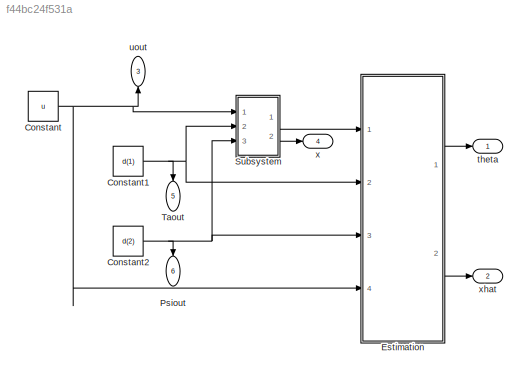
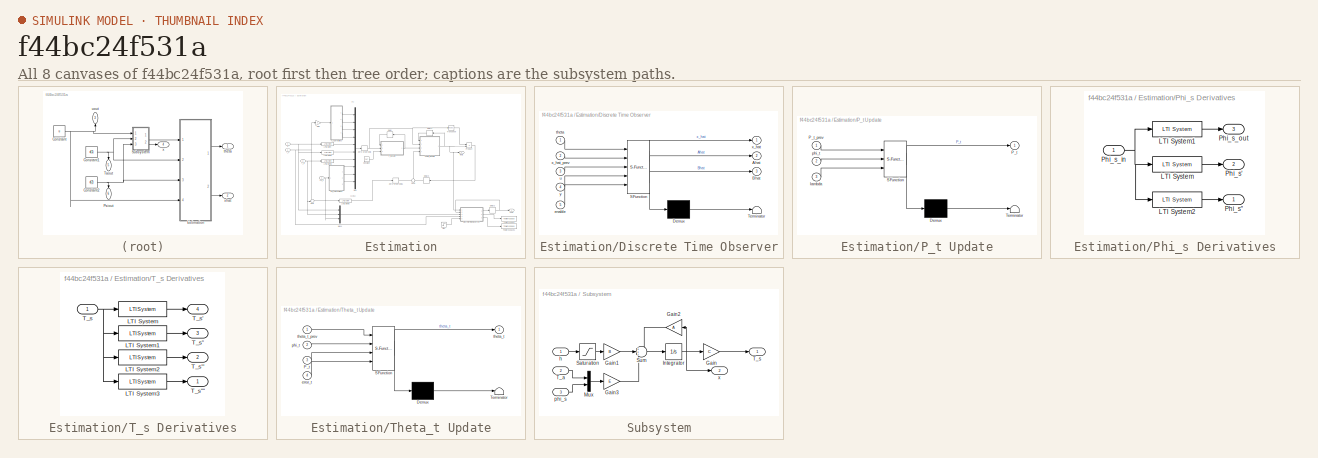
[diagram: thumbnail index - all 8 canvases of the model, root first then tree order]
MODEL slx_f44bc24f531a
KIND model
CONFIG AbsTol = auto
CONFIG EnableMultiTasking = off
CONFIG FixedStep = auto
CONFIG MaxStep = auto
CONFIG MinStep = auto
CONFIG RelTol = 1e-3
CONFIG SampleTimeConstraint = Unconstrained
CONFIG Solver = VariableStepAuto
CONFIG SolverName = VariableStepAuto
CONFIG StartTime = 0.0
CONFIG StopTime = i*dt
BLOCK [Constant] Constant
  Value = u
BLOCK [Constant] Constant1
  Value = d(1)
BLOCK [Constant] Constant2
  Value = d(2)
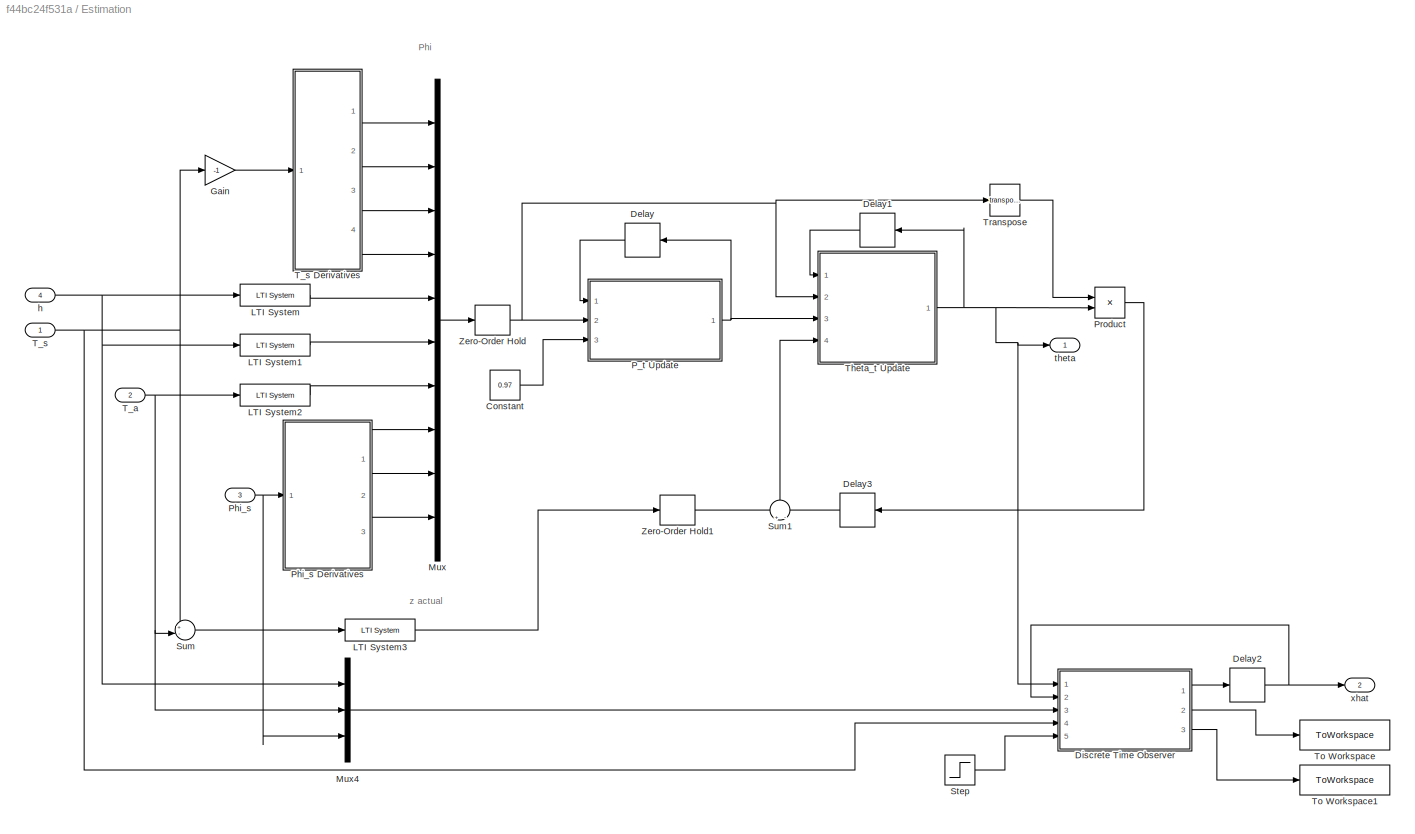
BLOCK [SubSystem] Estimation
  Ports = [4, 2]
  RequestExecContextInheritance = off
BLOCK [Constant] Estimation/Constant
  Value = 0.97
BLOCK [Delay] Estimation/Delay
  DelayLength = 1
  InitialCondition = 5*eye(10)
  InputPortMap = u0
  Ports = [1, 1]
BLOCK [Delay] Estimation/Delay1
  DelayLength = 1
  InitialCondition = 0
  InputPortMap = u0
  Ports = [1, 1]
BLOCK [Delay] Estimation/Delay2
  DelayLength = 1
  InitialCondition = [0;0;0;0];
  InputPortMap = u0
  Ports = [1, 1]
BLOCK [Delay] Estimation/Delay3
  DelayLength = 1
  InitialCondition = 0
  InputPortMap = u0
  Ports = [1, 1]
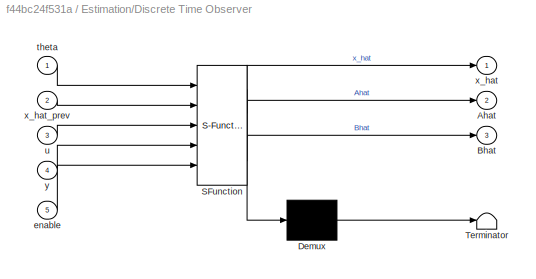
BLOCK [SubSystem] Estimation/Discrete Time Observer
  ErrorFcn = Stateflow.Translate.translate
  PermitHierarchicalResolution = ExplicitOnly
  Ports = [5, 3]
  RequestExecContextInheritance = off
  SFBlockType = MATLAB Function
  SystemSampleTime = t_observer
  TreatAsAtomicUnit = on
BLOCK [Demux] Estimation/Discrete Time Observer/ Demux 
  Outputs = 1
  Ports = [1, 1]
BLOCK [S-Function] Estimation/Discrete Time Observer/ SFunction 
  EnableBusSupport = on
  FunctionName = sf_sfun
  PortCounts = [5 4]
  Ports = [5, 4]
  SFcnIsStateOwnerBlock = off
  SFunctionDeploymentMode = off
  Tag = Stateflow S-Function 4
BLOCK [Terminator] Estimation/Discrete Time Observer/ Terminator 
BLOCK [Outport] Estimation/Discrete Time Observer/Ahat
  IconDisplay = Port number
  Port = 2
BLOCK [Outport] Estimation/Discrete Time Observer/Bhat
  IconDisplay = Port number
  Port = 3
BLOCK [Inport] Estimation/Discrete Time Observer/enable
  IconDisplay = Port number
  Port = 5
BLOCK [Inport] Estimation/Discrete Time Observer/theta
  IconDisplay = Port number
BLOCK [Inport] Estimation/Discrete Time Observer/u
  IconDisplay = Port number
  Port = 3
BLOCK [Outport] Estimation/Discrete Time Observer/x_hat
  IconDisplay = Port number
BLOCK [Inport] Estimation/Discrete Time Observer/x_hat_prev
  IconDisplay = Port number
  Port = 2
BLOCK [Inport] Estimation/Discrete Time Observer/y
  IconDisplay = Port number
  Port = 4
BLOCK [Gain] Estimation/Gain
  Gain = -1
  OutDataTypeStr = Inherit: Inherit via internal rule
  ParamDataTypeStr = Inherit: Inherit via internal rule
  SaturateOnIntegerOverflow = off
BLOCK [Reference] Estimation/LTI System  REF=cstblocks/LTI System
  Ports = [1, 1]
  SourceBlock = cstblocks/LTI System
  SourceProductBaseCode = CT
  SourceProductName = Control System Toolbox
  SourceType = LTI Block
BLOCK [Reference] Estimation/LTI System1  REF=cstblocks/LTI System
  Ports = [1, 1]
  SourceBlock = cstblocks/LTI System
  SourceProductBaseCode = CT
  SourceProductName = Control System Toolbox
  SourceType = LTI Block
BLOCK [Reference] Estimation/LTI System2  REF=cstblocks/LTI System
  Ports = [1, 1]
  SourceBlock = cstblocks/LTI System
  SourceProductBaseCode = CT
  SourceProductName = Control System Toolbox
  SourceType = LTI Block
BLOCK [Reference] Estimation/LTI System3  REF=cstblocks/LTI System
  Ports = [1, 1]
  SourceBlock = cstblocks/LTI System
  SourceProductBaseCode = CT
  SourceProductName = Control System Toolbox
  SourceType = LTI Block
BLOCK [Mux] Estimation/Mux
  DisplayOption = bar
  Inputs = 10
  Ports = [10, 1]
BLOCK [Mux] Estimation/Mux4
  DisplayOption = bar
  Inputs = 3
  Ports = [3, 1]
BLOCK [SubSystem] Estimation/P_t Update
  ErrorFcn = Stateflow.Translate.translate
  PermitHierarchicalResolution = ExplicitOnly
  Ports = [3, 1]
  RequestExecContextInheritance = off
  SFBlockType = MATLAB Function
  TreatAsAtomicUnit = on
BLOCK [Demux] Estimation/P_t Update/ Demux 
  Outputs = 1
  Ports = [1, 1]
BLOCK [S-Function] Estimation/P_t Update/ SFunction 
  EnableBusSupport = on
  FunctionName = sf_sfun
  PortCounts = [3 2]
  Ports = [3, 2]
  SFcnIsStateOwnerBlock = off
  SFunctionDeploymentMode = off
  Tag = Stateflow S-Function 1
BLOCK [Terminator] Estimation/P_t Update/ Terminator 
BLOCK [Outport] Estimation/P_t Update/P_t
  IconDisplay = Port number
BLOCK [Inport] Estimation/P_t Update/P_t_prev
  IconDisplay = Port number
BLOCK [Inport] Estimation/P_t Update/lambda
  IconDisplay = Port number
  Port = 3
BLOCK [Inport] Estimation/P_t Update/phi_t
  IconDisplay = Port number
  Port = 2
BLOCK [Inport] Estimation/Phi_s
  IconDisplay = Port number
  Port = 3
BLOCK [SubSystem] Estimation/Phi_s Derivatives
  Ports = [1, 3]
  RequestExecContextInheritance = off
BLOCK [Reference] Estimation/Phi_s Derivatives/LTI System  REF=cstblocks/LTI System
  Ports = [1, 1]
  SourceBlock = cstblocks/LTI System
  SourceProductBaseCode = CT
  SourceProductName = Control System Toolbox
  SourceType = LTI Block
BLOCK [Reference] Estimation/Phi_s Derivatives/LTI System1  REF=cstblocks/LTI System
  Ports = [1, 1]
  SourceBlock = cstblocks/LTI System
  SourceProductBaseCode = CT
  SourceProductName = Control System Toolbox
  SourceType = LTI Block
BLOCK [Reference] Estimation/Phi_s Derivatives/LTI System2  REF=cstblocks/LTI System
  Ports = [1, 1]
  SourceBlock = cstblocks/LTI System
  SourceProductBaseCode = CT
  SourceProductName = Control System Toolbox
  SourceType = LTI Block
BLOCK [Outport] Estimation/Phi_s Derivatives/Phi_s'
  IconDisplay = Port number
  Port = 2
BLOCK [Outport] Estimation/Phi_s Derivatives/Phi_s''
  IconDisplay = Port number
BLOCK [Inport] Estimation/Phi_s Derivatives/Phi_s_in
  IconDisplay = Port number
BLOCK [Outport] Estimation/Phi_s Derivatives/Phi_s_out
  IconDisplay = Port number
  Port = 3
BLOCK [Product] Estimation/Product
  InputSameDT = off
  Multiplication = Matrix(*)
  OutDataTypeStr = Inherit: Inherit via internal rule
  Ports = [2, 1]
  RndMeth = Floor
  SaturateOnIntegerOverflow = off
BLOCK [Step] Estimation/Step
  Time = n_paramConverge
BLOCK [Sum] Estimation/Sum
  IconShape = round
  InputSameDT = off
  Inputs = +-|
  OutDataTypeStr = Inherit: Inherit via internal rule
  Ports = [2, 1]
  SaturateOnIntegerOverflow = off
BLOCK [Sum] Estimation/Sum1
  IconShape = round
  InputSameDT = off
  Inputs = +|-
  OutDataTypeStr = Inherit: Inherit via internal rule
  Ports = [2, 1]
  SaturateOnIntegerOverflow = off
BLOCK [Inport] Estimation/T_a
  IconDisplay = Port number
  Port = 2
BLOCK [Inport] Estimation/T_s
  IconDisplay = Port number
BLOCK [SubSystem] Estimation/T_s Derivatives
  Ports = [1, 4]
  RequestExecContextInheritance = off
BLOCK [Reference] Estimation/T_s Derivatives/LTI System  REF=cstblocks/LTI System
  Ports = [1, 1]
  SourceBlock = cstblocks/LTI System
  SourceProductBaseCode = CT
  SourceProductName = Control System Toolbox
  SourceType = LTI Block
BLOCK [Reference] Estimation/T_s Derivatives/LTI System1  REF=cstblocks/LTI System
  Ports = [1, 1]
  SourceBlock = cstblocks/LTI System
  SourceProductBaseCode = CT
  SourceProductName = Control System Toolbox
  SourceType = LTI Block
BLOCK [Reference] Estimation/T_s Derivatives/LTI System2  REF=cstblocks/LTI System
  Ports = [1, 1]
  SourceBlock = cstblocks/LTI System
  SourceProductBaseCode = CT
  SourceProductName = Control System Toolbox
  SourceType = LTI Block
BLOCK [Reference] Estimation/T_s Derivatives/LTI System3  REF=cstblocks/LTI System
  Ports = [1, 1]
  SourceBlock = cstblocks/LTI System
  SourceProductBaseCode = CT
  SourceProductName = Control System Toolbox
  SourceType = LTI Block
BLOCK [Inport] Estimation/T_s Derivatives/T_s
  IconDisplay = Port number
BLOCK [Outport] Estimation/T_s Derivatives/T_s'
  IconDisplay = Port number
  Port = 4
BLOCK [Outport] Estimation/T_s Derivatives/T_s''
  IconDisplay = Port number
  Port = 3
BLOCK [Outport] Estimation/T_s Derivatives/T_s'''
  IconDisplay = Port number
  Port = 2
BLOCK [Outport] Estimation/T_s Derivatives/T_s''''
  IconDisplay = Port number
BLOCK [SubSystem] Estimation/Theta_t Update
  ErrorFcn = Stateflow.Translate.translate
  PermitHierarchicalResolution = ExplicitOnly
  Ports = [4, 1]
  RequestExecContextInheritance = off
  SFBlockType = MATLAB Function
  TreatAsAtomicUnit = on
BLOCK [Demux] Estimation/Theta_t Update/ Demux 
  Outputs = 1
  Ports = [1, 1]
BLOCK [S-Function] Estimation/Theta_t Update/ SFunction 
  EnableBusSupport = on
  FunctionName = sf_sfun
  PortCounts = [4 2]
  Ports = [4, 2]
  SFcnIsStateOwnerBlock = off
  SFunctionDeploymentMode = off
  Tag = Stateflow S-Function 3
BLOCK [Terminator] Estimation/Theta_t Update/ Terminator 
BLOCK [Inport] Estimation/Theta_t Update/P_t
  IconDisplay = Port number
  Port = 3
BLOCK [Inport] Estimation/Theta_t Update/error_t
  IconDisplay = Port number
  Port = 4
BLOCK [Inport] Estimation/Theta_t Update/phi_t
  IconDisplay = Port number
  Port = 2
BLOCK [Outport] Estimation/Theta_t Update/theta_t
  IconDisplay = Port number
BLOCK [Inport] Estimation/Theta_t Update/theta_t_prev
  IconDisplay = Port number
BLOCK [ToWorkspace] Estimation/To Workspace
  FixptAsFi = on
  MaxDataPoints = 1
  Ports = [1]
  SampleTime = -1
  SaveFormat = Structure
  VariableName = EstimatedPlant_A
BLOCK [ToWorkspace] Estimation/To Workspace1
  FixptAsFi = on
  MaxDataPoints = 1
  Ports = [1]
  SampleTime = -1
  SaveFormat = Structure
  VariableName = EstimatedPlant_B
BLOCK [Math] Estimation/Transpose
  Operator = transpose
  Ports = [1, 1]
  SignedPower = off
BLOCK [ZeroOrderHold] Estimation/Zero-Order Hold
  SampleTime = t_sample_est
BLOCK [ZeroOrderHold] Estimation/Zero-Order Hold1
  SampleTime = t_sample_est
BLOCK [Inport] Estimation/h
  IconDisplay = Port number
  Port = 4
BLOCK [Outport] Estimation/theta
  IconDisplay = Port number
BLOCK [Outport] Estimation/xhat
  IconDisplay = Port number
  Port = 2
BLOCK [Outport] Psiout
  IconDisplay = Port number
  Port = 6
BLOCK [SubSystem] Subsystem
  Ports = [3, 2]
  RequestExecContextInheritance = off
BLOCK [Gain] Subsystem/Gain
  Gain = C
  InitFcn = parameters
  Multiplication = Matrix(K*u)
  OutDataTypeStr = Inherit: Inherit via internal rule
  ParamDataTypeStr = Inherit: Inherit via internal rule
  SaturateOnIntegerOverflow = off
BLOCK [Gain] Subsystem/Gain1
  Gain = B
  Multiplication = Matrix(K*u)
  OutDataTypeStr = Inherit: Inherit via internal rule
  ParamDataTypeStr = Inherit: Inherit via internal rule
  SaturateOnIntegerOverflow = off
BLOCK [Gain] Subsystem/Gain2
  Gain = A
  Multiplication = Matrix(K*u)
  OutDataTypeStr = Inherit: Inherit via internal rule
  ParamDataTypeStr = Inherit: Inherit via internal rule
  SaturateOnIntegerOverflow = off
BLOCK [Gain] Subsystem/Gain3
  Gain = E
  Multiplication = Matrix(K*u)
  OutDataTypeStr = Inherit: Inherit via internal rule
  ParamDataTypeStr = Inherit: Inherit via internal rule
  SaturateOnIntegerOverflow = off
BLOCK [Integrator] Subsystem/Integrator
  InitialCondition = x0
  Ports = [1, 1]
BLOCK [Mux] Subsystem/Mux
  DisplayOption = bar
  Inputs = 2
  Ports = [2, 1]
BLOCK [Saturate] Subsystem/Saturation
  InputPortMap = u0
  LowerLimit = 0
  Ports = [1, 1]
  UpperLimit = 1
BLOCK [Sum] Subsystem/Sum
  IconShape = round
  InputSameDT = off
  Inputs = +++
  OutDataTypeStr = Inherit: Inherit via internal rule
  Ports = [3, 1]
  SaturateOnIntegerOverflow = off
BLOCK [Inport] Subsystem/T_a
  IconDisplay = Port number
  Port = 2
BLOCK [Outport] Subsystem/T_s
  IconDisplay = Port number
BLOCK [Inport] Subsystem/h
  IconDisplay = Port number
BLOCK [Inport] Subsystem/phi_s
  IconDisplay = Port number
  Port = 3
BLOCK [Outport] Subsystem/x
  IconDisplay = Port number
  Port = 2
BLOCK [Outport] Taout
  IconDisplay = Port number
  Port = 5
BLOCK [Outport] theta
  IconDisplay = Port number
BLOCK [Outport] uout
  IconDisplay = Port number
  Port = 3
BLOCK [Outport] x
  IconDisplay = Port number
  Port = 4
BLOCK [Outport] xhat
  IconDisplay = Port number
  Port = 2
ANNOTATION Estimation: Phi
ANNOTATION Estimation: z actual
NET Constant1:1 -> Estimation:2, Subsystem:2, Taout:1
NET Constant2:1 -> Estimation:3, Psiout:1, Subsystem:3
NET Constant:1 -> Estimation:4, Subsystem:1, uout:1
LINE Estimation/Constant:1 -> Estimation/P_t Update:3
LINE Estimation/Delay1:1 -> Estimation/Theta_t Update:1
NET Estimation/Delay2:1 -> Estimation/Discrete Time Observer:2, Estimation/xhat:1
LINE Estimation/Delay3:1 -> Estimation/Sum1:2
LINE Estimation/Delay:1 -> Estimation/P_t Update:1
LINE Estimation/Discrete Time Observer:1 -> Estimation/Delay2:1
LINE Estimation/Discrete Time Observer:2 -> Estimation/To Workspace:1
LINE Estimation/Discrete Time Observer:3 -> Estimation/To Workspace1:1
LINE Estimation/Gain:1 -> Estimation/T_s Derivatives:1
LINE Estimation/LTI System1:1 -> Estimation/Mux:6
LINE Estimation/LTI System2:1 -> Estimation/Mux:7
LINE Estimation/LTI System3:1 -> Estimation/Zero-Order Hold1:1
LINE Estimation/LTI System:1 -> Estimation/Mux:5
LINE Estimation/Mux4:1 -> Estimation/Discrete Time Observer:3
LINE Estimation/Mux:1 -> Estimation/Zero-Order Hold:1
NET Estimation/P_t Update:1 -> Estimation/Delay:1, Estimation/Theta_t Update:3
LINE Estimation/Phi_s Derivatives/LTI System1:1 -> Estimation/Phi_s Derivatives/Phi_s_out:1
LINE Estimation/Phi_s Derivatives/LTI System2:1 -> Estimation/Phi_s Derivatives/Phi_s'':1
LINE Estimation/Phi_s Derivatives/LTI System:1 -> Estimation/Phi_s Derivatives/Phi_s':1
NET Estimation/Phi_s Derivatives/Phi_s_in:1 -> Estimation/Phi_s Derivatives/LTI System1:1, Estimation/Phi_s Derivatives/LTI System2:1, Estimation/Phi_s Derivatives/LTI System:1
LINE Estimation/Phi_s Derivatives:1 -> Estimation/Mux:8
LINE Estimation/Phi_s Derivatives:2 -> Estimation/Mux:9
LINE Estimation/Phi_s Derivatives:3 -> Estimation/Mux:10
NET Estimation/Phi_s:1 -> Estimation/Mux4:3, Estimation/Phi_s Derivatives:1
LINE Estimation/Product:1 -> Estimation/Delay3:1
LINE Estimation/Step:1 -> Estimation/Discrete Time Observer:5
LINE Estimation/Sum1:1 -> Estimation/Theta_t Update:4
LINE Estimation/Sum:1 -> Estimation/LTI System3:1
NET Estimation/T_a:1 -> Estimation/LTI System2:1, Estimation/Mux4:2, Estimation/Sum:2
LINE Estimation/T_s Derivatives/LTI System1:1 -> Estimation/T_s Derivatives/T_s'':1
LINE Estimation/T_s Derivatives/LTI System2:1 -> Estimation/T_s Derivatives/T_s''':1
LINE Estimation/T_s Derivatives/LTI System3:1 -> Estimation/T_s Derivatives/T_s'''':1
LINE Estimation/T_s Derivatives/LTI System:1 -> Estimation/T_s Derivatives/T_s':1
NET Estimation/T_s Derivatives/T_s:1 -> Estimation/T_s Derivatives/LTI System1:1, Estimation/T_s Derivatives/LTI System2:1, Estimation/T_s Derivatives/LTI System3:1, Estimation/T_s Derivatives/LTI System:1
LINE Estimation/T_s Derivatives:1 -> Estimation/Mux:1
LINE Estimation/T_s Derivatives:2 -> Estimation/Mux:2
LINE Estimation/T_s Derivatives:3 -> Estimation/Mux:3
LINE Estimation/T_s Derivatives:4 -> Estimation/Mux:4
NET Estimation/T_s:1 -> Estimation/Discrete Time Observer:4, Estimation/Gain:1, Estimation/Sum:1
NET Estimation/Theta_t Update:1 -> Estimation/Delay1:1, Estimation/Discrete Time Observer:1, Estimation/Product:2, Estimation/theta:1
LINE Estimation/Transpose:1 -> Estimation/Product:1
LINE Estimation/Zero-Order Hold1:1 -> Estimation/Sum1:1
NET Estimation/Zero-Order Hold:1 -> Estimation/P_t Update:2, Estimation/Theta_t Update:2, Estimation/Transpose:1
NET Estimation/h:1 -> Estimation/LTI System1:1, Estimation/LTI System:1, Estimation/Mux4:1
LINE Estimation:1 -> theta:1
LINE Estimation:2 -> xhat:1
LINE Subsystem/Gain1:1 -> Subsystem/Sum:2
LINE Subsystem/Gain2:1 -> Subsystem/Sum:1
LINE Subsystem/Gain3:1 -> Subsystem/Sum:3
LINE Subsystem/Gain:1 -> Subsystem/T_s:1
NET Subsystem/Integrator:1 -> Subsystem/Gain2:1, Subsystem/Gain:1, Subsystem/x:1
LINE Subsystem/Mux:1 -> Subsystem/Gain3:1
LINE Subsystem/Saturation:1 -> Subsystem/Gain1:1
LINE Subsystem/Sum:1 -> Subsystem/Integrator:1
LINE Subsystem/T_a:1 -> Subsystem/Mux:1
LINE Subsystem/h:1 -> Subsystem/Saturation:1
LINE Subsystem/phi_s:1 -> Subsystem/Mux:2
LINE Subsystem:1 -> Estimation:1
LINE Subsystem:2 -> x:1
note: NET lines group one-source signal fan-out (src -> all destinations, sorted); 1:1 wires keep LINE
CHART Estimation/P_t Update states=1 transitions=1
  STATE_LABEL 'eML_blk_kernel()'
  STATE_LABEL "SCRIPT:\nfunction P_t = fcn(P_t_prev, phi_t, lambda)\n% Calculate new P\n  numerator   = P_t_prev*(phi_t*phi_t')*P_t_prev;\n  denominator = lambda + phi_t'*P_t_prev*phi_t;\n\n  P_t = (P_t_prev - numerator/denominator)/lambda;\nend"
CHART Estimation/Theta_t Update states=1 transitions=1
  STATE_LABEL 'eML_blk_kernel()'
  STATE_LABEL 'SCRIPT:\nfunction theta_t = fcn(theta_t_prev, phi_t, P_t, error_t)\n% Update estimation vector theta \n  delta = P_t*phi_t.*error_t;\n  theta_t = theta_t_prev + delta;\nend'
CHART Estimation/Discrete Time Observer states=1 transitions=1
  STATE_LABEL 'eML_blk_kernel()'
  STATE_LABEL 'SCRIPT:\nfunction [x_hat, Ahat, Bhat] = fcn(theta, x_hat_prev, u, y, enable)\n  % Implement adaptive observer discretized using forward Euler\n  if enable == 0\n    x_hat = [0;0;0;0;];\n    Ahat = zeros(4,4);\n    Bhat = zeros(4,3);\n  else\n    Ts = 0.01; % must match sample rate of simulink block\n    a_star = [22;179;638;840;]; % Cont. time eig-vals at -4, -5, -6, -7\n    a4 = theta(1);\n    \n    % Conver...<+884ch>'
